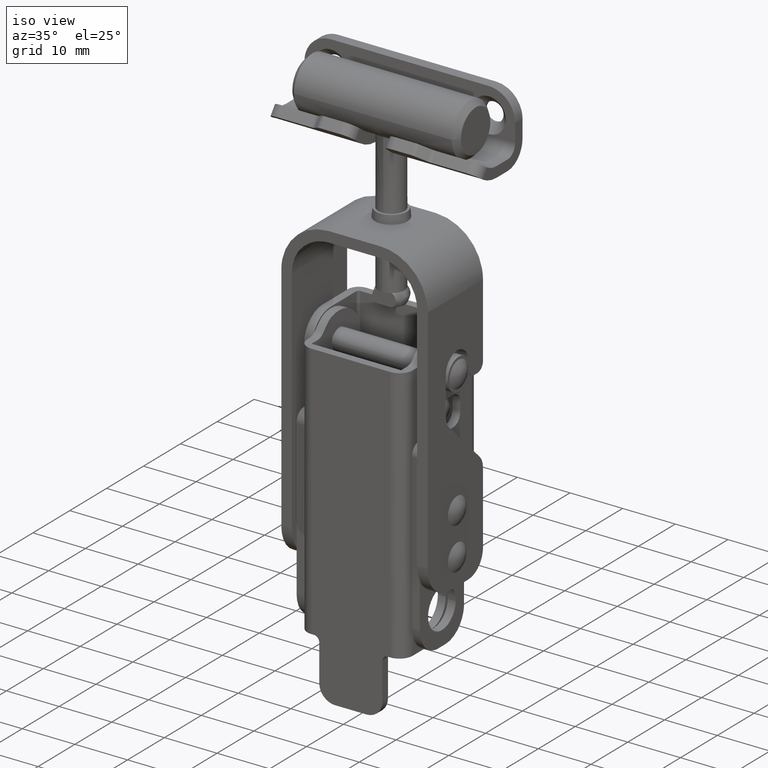
[diagram: clean part render]
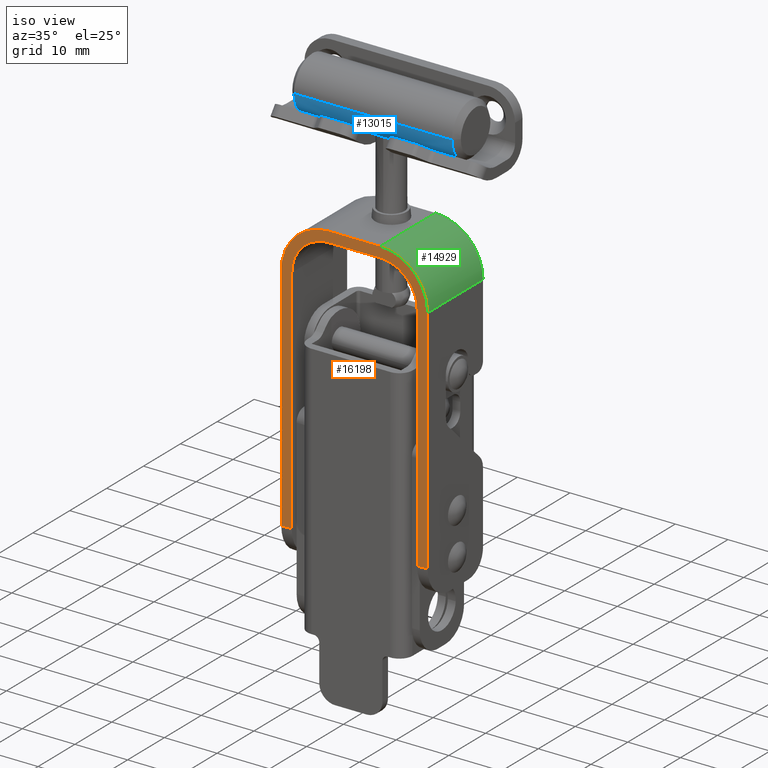
[diagram: same view with three faces highlighted in distinct colors, each labeled with its STEP entity id]
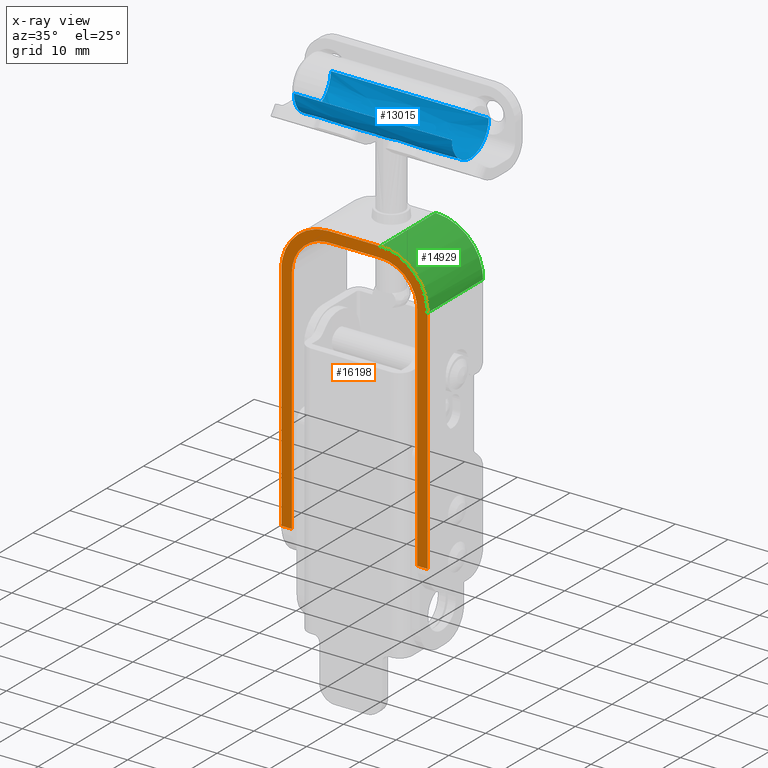
[diagram: x-ray of the same camera — body ghosted, the three highlighted faces saturated]
A machine part, iso view with three faces highlighted in distinct colors.
The next image is the same camera in x-ray (body ghosted, the three faces saturated) — at least one of them is partly hidden behind the body in this view.
Their STEP definitions:

[orange] entity #16198 — the highlighted face is a freeform B-spline surface patch.
#14499=CARTESIAN_POINT('',(13.899999999970520,-17.000000000073101,21.500000003629150));
#14500=VERTEX_POINT('',#14499);
#14506=CARTESIAN_POINT('',(13.899999999970500,-17.000000000073101,-22.499999996264648));
#14507=VERTEX_POINT('',#14506);
#14508=CARTESIAN_POINT('',(13.899999999970520,-17.000000000073101,21.500000003629150));
#14509=CARTESIAN_POINT('',(13.899999999970500,-17.000000000073101,-22.499999996264648));
#14510=QUASI_UNIFORM_CURVE('',1,(#14508,#14509),.UNSPECIFIED.,.F.,.U.);
#14511=EDGE_CURVE('',#14500,#14507,#14510,.T.);
#14845=CARTESIAN_POINT('',(-13.899999999970520,-17.000000000073101,21.500000003629150));
#14846=VERTEX_POINT('',#14845);
#14852=CARTESIAN_POINT('',(-4.899999999970480,-17.000000000073101,30.500000003629150));
#14853=VERTEX_POINT('',#14852);
#14854=CARTESIAN_POINT('',(-4.899999999970480,-17.000000000073101,30.500000003629140));
#14855=CARTESIAN_POINT('',(-13.899999999970481,-17.000000000073104,30.500000003629143));
#14856=CARTESIAN_POINT('',(-13.899999999970481,-17.000000000073101,21.500000003629150));
#14864=(BOUNDED_CURVE()B_SPLINE_CURVE(2,(#14854,#14855,#14856),.UNSPECIFIED.,.F.,.U.)CURVE()GEOMETRIC_REPRESENTATION_ITEM()QUASI_UNIFORM_CURVE()RATIONAL_B_SPLINE_CURVE((1.0,0.707106781186547,1.0))REPRESENTATION_ITEM(''));
#14865=EDGE_CURVE('',#14853,#14846,#14864,.T.);
#14904=CARTESIAN_POINT('',(4.899999999970480,-17.000000000073101,30.500000003629150));
#14905=VERTEX_POINT('',#14904);
#14911=CARTESIAN_POINT('',(13.899999999970520,-17.000000000073101,21.500000003629150));
#14912=CARTESIAN_POINT('',(13.900038232332751,-17.000000000073030,22.015412612368110));
#14913=CARTESIAN_POINT('',(13.811211625211000,-17.000000000073189,23.046232291412171));
#14914=CARTESIAN_POINT('',(13.378093858645270,-17.000000000073090,24.689913717342939));
#14915=CARTESIAN_POINT('',(12.647001604852500,-17.000000000073062,26.187862018049788));
#14916=CARTESIAN_POINT('',(11.781775484591609,-17.000000000073129,27.339422776038791));
#14917=CARTESIAN_POINT('',(10.932286727050380,-17.000000000073030,28.209995976485821));
#14918=CARTESIAN_POINT('',(9.779549192730297,-17.000000000073161,29.132861557127431));
#14919=CARTESIAN_POINT('',(8.330829296094505,-17.000000000073051,29.884462309425690));
#14920=CARTESIAN_POINT('',(6.593471048181974,-17.000000000073189,30.388154193837220));
#14921=CARTESIAN_POINT('',(5.525870303849191,-17.000000000072991,30.500087778918850));
#14922=CARTESIAN_POINT('',(4.899999999970480,-17.000000000073101,30.500000003629150));
#14923=B_SPLINE_CURVE_WITH_KNOTS('',3,(#14911,#14912,#14913,#14914,#14915,#14916,#14917,#14918,#14919,#14920,#14921,#14922),.UNSPECIFIED.,.F.,.U.,(4,1,1,1,1,1,1,1,1,4),(0.000000055512050,1.546243909095963,3.092519393494833,5.080581994167771,6.516427126079988,7.399936377352282,8.725319351749512,10.934287687331731,12.259652249708751,14.137255645877090),.UNSPECIFIED.);
#14924=EDGE_CURVE('',#14500,#14905,#14923,.T.);
#14961=CARTESIAN_POINT('',(-4.900000000000130,-17.000000000073101,28.500000003657949));
#14962=VERTEX_POINT('',#14961);
#14968=CARTESIAN_POINT('',(-11.899999999990200,-17.000000000073101,21.500000003663452));
#14969=VERTEX_POINT('',#14968);
#14970=CARTESIAN_POINT('',(-11.899999999990200,-17.000000000073051,21.500000003663452));
#14971=CARTESIAN_POINT('',(-11.899999999984697,-17.000000000073047,28.500000003648022));
#14972=CARTESIAN_POINT('',(-4.900000000000129,-17.000000000073051,28.500000003657949));
#14980=(BOUNDED_CURVE()B_SPLINE_CURVE(2,(#14970,#14971,#14972),.UNSPECIFIED.,.F.,.U.)CURVE()GEOMETRIC_REPRESENTATION_ITEM()QUASI_UNIFORM_CURVE()RATIONAL_B_SPLINE_CURVE((1.0,0.707106781187327,1.0))REPRESENTATION_ITEM(''));
#14981=EDGE_CURVE('',#14969,#14962,#14980,.T.);
#15022=CARTESIAN_POINT('',(11.900000000009760,-17.000000000073101,21.500000003666351));
#15023=VERTEX_POINT('',#15022);
#15029=CARTESIAN_POINT('',(4.899999999999830,-17.000000000073101,28.500000003671850));
#15030=VERTEX_POINT('',#15029);
#15031=CARTESIAN_POINT('',(4.899999999999830,-17.000000000073101,28.500000003671850));
#15032=CARTESIAN_POINT('',(5.587259016827311,-17.000000000073008,28.500288990388700));
#15033=CARTESIAN_POINT('',(6.675174023912357,-17.000000000073051,28.338434623315340));
#15034=CARTESIAN_POINT('',(8.062807656175355,-17.000000000073101,27.783386633340530));
#15035=CARTESIAN_POINT('',(9.114931272546013,-17.000000000072980,27.135114271064420));
#15036=CARTESIAN_POINT('',(10.121934898411290,-17.000000000073101,26.233683271196622));
#15037=CARTESIAN_POINT('',(10.842719321716631,-17.000000000072820,25.261832204765930));
#15038=CARTESIAN_POINT('',(11.364691111777550,-17.000000000073580,24.240314396285271));
#15039=CARTESIAN_POINT('',(11.773750757478251,-17.000000000072561,23.074807318404300));
#15040=CARTESIAN_POINT('',(11.900177481028820,-17.000000000073090,22.101335043621219));
#15041=CARTESIAN_POINT('',(11.900000000009760,-17.000000000073101,21.500000003666351));
#15042=B_SPLINE_CURVE_WITH_KNOTS('',3,(#15031,#15032,#15033,#15034,#15035,#15036,#15037,#15038,#15039,#15040,#15041),.UNSPECIFIED.,.F.,.U.,(4,1,1,1,1,1,1,1,4),(0.000000087222778,2.061673075693193,3.264340146206777,4.467005861127212,5.755496276178548,7.301779332796723,8.074922865340515,9.191685636750872,10.995643280144259),.UNSPECIFIED.);
#15043=EDGE_CURVE('',#15030,#15023,#15042,.T.);
#15058=CARTESIAN_POINT('',(11.899999999975240,-17.000000000073101,-22.499999996264648));
#15059=VERTEX_POINT('',#15058);
#15060=CARTESIAN_POINT('',(11.900000000009760,-17.000000000073101,21.500000003666351));
#15061=CARTESIAN_POINT('',(11.899999999975240,-17.000000000073101,-22.499999996264648));
#15062=QUASI_UNIFORM_CURVE('',1,(#15060,#15061),.UNSPECIFIED.,.F.,.U.);
#15063=EDGE_CURVE('',#15023,#15059,#15062,.T.);
#15248=CARTESIAN_POINT('',(-4.900000000000130,-17.000000000073101,28.500000003657949));
#15249=CARTESIAN_POINT('',(4.899999999999830,-17.000000000073101,28.500000003671850));
#15250=QUASI_UNIFORM_CURVE('',1,(#15248,#15249),.UNSPECIFIED.,.F.,.U.);
#15251=EDGE_CURVE('',#14962,#15030,#15250,.T.);
#15276=CARTESIAN_POINT('',(-11.900000000024701,-17.000000000073101,-22.499999996264648));
#15277=VERTEX_POINT('',#15276);
#15278=CARTESIAN_POINT('',(-11.900000000024701,-17.000000000073101,-22.499999996264648));
#15279=CARTESIAN_POINT('',(-11.899999999990200,-17.000000000073101,21.500000003663452));
#15280=QUASI_UNIFORM_CURVE('',1,(#15278,#15279),.UNSPECIFIED.,.F.,.U.);
#15281=EDGE_CURVE('',#15277,#14969,#15280,.T.);
#15455=CARTESIAN_POINT('',(-4.899999999970480,-17.000000000073101,30.500000003629150));
#15456=CARTESIAN_POINT('',(4.899999999970480,-17.000000000073101,30.500000003629150));
#15457=QUASI_UNIFORM_CURVE('',1,(#15455,#15456),.UNSPECIFIED.,.F.,.U.);
#15458=EDGE_CURVE('',#14853,#14905,#15457,.T.);
#16125=CARTESIAN_POINT('',(11.899999999975240,-17.000000000073101,-22.499999996264648));
#16126=CARTESIAN_POINT('',(13.899999999970500,-17.000000000073101,-22.499999996264648));
#16127=QUASI_UNIFORM_CURVE('',1,(#16125,#16126),.UNSPECIFIED.,.F.,.U.);
#16128=EDGE_CURVE('',#15059,#14507,#16127,.T.);
#16152=CARTESIAN_POINT('',(-13.899999999970500,-17.000000000073101,-22.499999996264648));
#16153=VERTEX_POINT('',#16152);
#16154=CARTESIAN_POINT('',(-13.899999999970500,-17.000000000073101,-22.499999996264648));
#16155=CARTESIAN_POINT('',(-11.900000000024701,-17.000000000073101,-22.499999996264648));
#16156=QUASI_UNIFORM_CURVE('',1,(#16154,#16155),.UNSPECIFIED.,.F.,.U.);
#16157=EDGE_CURVE('',#16153,#15277,#16156,.T.);
#16175=CARTESIAN_POINT('',(-15.288609946085780,-17.000000000073101,33.147349900899563));
#16176=CARTESIAN_POINT('',(-15.288609946085780,-17.000000000073101,-25.147351315105851));
#16177=CARTESIAN_POINT('',(15.288610691739891,-17.000000000073101,33.147349900899563));
#16178=CARTESIAN_POINT('',(15.288610691739891,-17.000000000073101,-25.147351315105851));
#16179=B_SPLINE_SURFACE_WITH_KNOTS('',1,1,((#16175,#16177),(#16176,#16178)),.UNSPECIFIED.,.F.,.F.,.U.,(2,2),(2,2),(0.0,58.294701216005407),(0.0,30.577220637825668),.UNSPECIFIED.);
#16180=ORIENTED_EDGE('',*,*,#14511,.F.);
#16181=ORIENTED_EDGE('',*,*,#14924,.T.);
#16182=ORIENTED_EDGE('',*,*,#15458,.F.);
#16183=ORIENTED_EDGE('',*,*,#14865,.T.);
#16184=CARTESIAN_POINT('',(-13.899999999970520,-17.000000000073101,21.500000003629150));
#16185=CARTESIAN_POINT('',(-13.899999999970500,-17.000000000073101,-22.499999996264648));
#16186=QUASI_UNIFORM_CURVE('',1,(#16184,#16185),.UNSPECIFIED.,.F.,.U.);
#16187=EDGE_CURVE('',#14846,#16153,#16186,.T.);
#16188=ORIENTED_EDGE('',*,*,#16187,.T.);
#16189=ORIENTED_EDGE('',*,*,#16157,.T.);
#16190=ORIENTED_EDGE('',*,*,#15281,.T.);
#16191=ORIENTED_EDGE('',*,*,#14981,.T.);
#16192=ORIENTED_EDGE('',*,*,#15251,.T.);
#16193=ORIENTED_EDGE('',*,*,#15043,.T.);
#16194=ORIENTED_EDGE('',*,*,#15063,.T.);
#16195=ORIENTED_EDGE('',*,*,#16128,.T.);
#16196=EDGE_LOOP('',(#16180,#16181,#16182,#16183,#16188,#16189,#16190,#16191,#16192,#16193,#16194,#16195));
#16197=FACE_OUTER_BOUND('',#16196,.T.);
#16198=ADVANCED_FACE('',(#16197),#16179,.T.);

[blue] entity #13015 — the highlighted face is a freeform B-spline surface patch.
#12554=CARTESIAN_POINT('',(15.000000000039250,-11.999809615010610,49.543632681334891));
#12555=VERTEX_POINT('',#12554);
#12563=CARTESIAN_POINT('',(15.000000000039250,-2.000190384989391,49.456367326030332));
#12564=VERTEX_POINT('',#12563);
#12622=CARTESIAN_POINT('',(15.000000000039099,-7.0,44.500000003991289));
#12623=VERTEX_POINT('',#12622);
#12624=CARTESIAN_POINT('',(15.000000000039099,-7.0,44.500000003991289));
#12625=CARTESIAN_POINT('',(15.000000000039170,-11.999999999691942,44.500000003910451));
#12626=CARTESIAN_POINT('',(15.000000000039250,-11.999999999692580,49.500000003520213));
#12627=CARTESIAN_POINT('',(15.000000000039241,-11.999999999692580,49.521816757785139));
#12628=CARTESIAN_POINT('',(15.000000000039243,-11.999809615010614,49.543632681334891));
#12636=(BOUNDED_CURVE()B_SPLINE_CURVE(2,(#12624,#12625,#12626,#12627,#12628),.UNSPECIFIED.,.F.,.U.)B_SPLINE_CURVE_WITH_KNOTS((3,2,3),(0.0,0.250000000000000,0.251539894346480),.UNSPECIFIED.)CURVE()GEOMETRIC_REPRESENTATION_ITEM()RATIONAL_B_SPLINE_CURVE((1.0,0.707106781186547,1.0,0.998195901552908,0.996414028073809))REPRESENTATION_ITEM(''));
#12637=EDGE_CURVE('',#12623,#12555,#12636,.T.);
#12639=CARTESIAN_POINT('',(15.000000000039247,-2.000190384989391,49.456367326030332));
#12640=CARTESIAN_POINT('',(15.000000000039167,-2.043443947653882,44.500000004072859));
#12641=CARTESIAN_POINT('',(15.000000000039099,-7.0,44.500000003991289));
#12649=(BOUNDED_CURVE()B_SPLINE_CURVE(2,(#12639,#12640,#12641),.UNSPECIFIED.,.F.,.U.)B_SPLINE_CURVE_WITH_KNOTS((3,3),(0.751539894346480,1.0),.UNSPECIFIED.)CURVE()GEOMETRIC_REPRESENTATION_ITEM()RATIONAL_B_SPLINE_CURVE((0.996414028073809,0.708910879633640,1.0))REPRESENTATION_ITEM(''));
#12650=EDGE_CURVE('',#12564,#12623,#12649,.T.);
#12682=CARTESIAN_POINT('',(-15.000220004284230,-11.999589619143480,49.478185584888713));
#12683=VERTEX_POINT('',#12682);
#12704=CARTESIAN_POINT('',(-14.999907684047960,-2.000098072512458,49.521817147950138));
#12705=VERTEX_POINT('',#12704);
#12751=CARTESIAN_POINT('',(-15.000000000039099,-7.0,44.500000003991289));
#12752=VERTEX_POINT('',#12751);
#12753=CARTESIAN_POINT('',(-15.000000000039099,-7.0,44.500000003991289));
#12754=CARTESIAN_POINT('',(-14.999953842043540,-2.043397791392812,44.532724915021305));
#12755=CARTESIAN_POINT('',(-14.999907684047965,-2.000098072512458,49.521817147950145));
#12763=(BOUNDED_CURVE()B_SPLINE_CURVE(2,(#12753,#12754,#12755),.UNSPECIFIED.,.F.,.U.)B_SPLINE_CURVE_WITH_KNOTS((3,3),(0.0,0.248460105654327),.UNSPECIFIED.)CURVE()GEOMETRIC_REPRESENTATION_ITEM()RATIONAL_B_SPLINE_CURVE((1.0,0.708910879632694,0.996414028075676))REPRESENTATION_ITEM(''));
#12764=EDGE_CURVE('',#12752,#12705,#12763,.T.);
#12766=CARTESIAN_POINT('',(-15.000220004284227,-11.999589619143473,49.478185584888706));
#12767=CARTESIAN_POINT('',(-15.000110002161660,-11.978049991516381,44.500000795453992));
#12768=CARTESIAN_POINT('',(-15.000000000039099,-7.0,44.500000003991289));
#12776=(BOUNDED_CURVE()B_SPLINE_CURVE(2,(#12766,#12767,#12768),.UNSPECIFIED.,.F.,.U.)B_SPLINE_CURVE_WITH_KNOTS((3,3),(0.750770619436434,1.0),.UNSPECIFIED.)CURVE()GEOMETRIC_REPRESENTATION_ITEM()RATIONAL_B_SPLINE_CURVE((0.998199892291126,0.708009618015417,1.0))REPRESENTATION_ITEM(''));
#12777=EDGE_CURVE('',#12683,#12752,#12776,.T.);
#12808=CARTESIAN_POINT('',(15.000000000039250,-2.000190384989391,49.456367326030332));
#12809=CARTESIAN_POINT('',(-14.999907684047960,-2.000098072512458,49.521817147950138));
#12810=QUASI_UNIFORM_CURVE('',1,(#12808,#12809),.UNSPECIFIED.,.F.,.U.);
#12811=EDGE_CURVE('',#12564,#12705,#12810,.T.);
#12815=CARTESIAN_POINT('',(15.000000000039250,-11.999809615010610,49.543632681334891));
#12816=CARTESIAN_POINT('',(-15.000220004284230,-11.999589619143480,49.478185584888713));
#12817=QUASI_UNIFORM_CURVE('',1,(#12815,#12816),.UNSPECIFIED.,.F.,.U.);
#12818=EDGE_CURVE('',#12555,#12683,#12817,.T.);
#12823=CARTESIAN_POINT('',(15.750000000041053,-1.999012651082635,49.591322264600450));
#12824=CARTESIAN_POINT('',(15.750000000041050,-1.999598207627918,49.524224130501999));
#12825=CARTESIAN_POINT('',(15.750000000041062,-2.043823062477002,44.456557711181254));
#12826=CARTESIAN_POINT('',(15.750000000041060,-7.043632677489178,44.500190388670433));
#12827=CARTESIAN_POINT('',(15.750000000041062,-12.043442292501354,44.543823066159604));
#12828=CARTESIAN_POINT('',(15.750000000041048,-11.999500566921403,49.579046084718023));
#12829=CARTESIAN_POINT('',(15.750000000041062,-11.999193326929966,49.614252300602878));
#12830=CARTESIAN_POINT('',(-15.768750000041104,-1.999012651082635,49.591322264600450));
#12831=CARTESIAN_POINT('',(-15.768750000041099,-1.999598207627918,49.524224130501999));
#12832=CARTESIAN_POINT('',(-15.768750000041109,-2.043823062477002,44.456557711181254));
#12833=CARTESIAN_POINT('',(-15.768750000041109,-7.043632677489178,44.500190388670433));
#12834=CARTESIAN_POINT('',(-15.768750000041109,-12.043442292501354,44.543823066159604));
#12835=CARTESIAN_POINT('',(-15.768750000041104,-11.999500566921403,49.579046084718023));
#12836=CARTESIAN_POINT('',(-15.768750000041109,-11.999193326929966,49.614252300602878));
#12844=(BOUNDED_SURFACE()B_SPLINE_SURFACE(2,1,((#12823,#12830),(#12824,#12831),(#12825,#12832),(#12826,#12833),(#12827,#12834),(#12828,#12835),(#12829,#12836)),.UNSPECIFIED.,.F.,.F.,.U.)B_SPLINE_SURFACE_WITH_KNOTS((3,1,2,1,3),(2,2),(0.0,0.159903358701858,8.444174605652291,16.728445852602722,16.811671951563941),(0.0,31.518750000082171),.UNSPECIFIED.)GEOMETRIC_REPRESENTATION_ITEM()RATIONAL_B_SPLINE_SURFACE(((1.011306874927957,1.011306874927957),(1.005653437463979,1.005653437463979),(0.707106781186548,0.707106781186548),(1.0,1.0),(0.707106781186548,0.707106781186548),(1.002942486947541,1.002942486947541),(1.005884973895081,1.005884973895081)))REPRESENTATION_ITEM('')SURFACE());
#12845=ORIENTED_EDGE('',*,*,#12637,.T.);
#12846=ORIENTED_EDGE('',*,*,#12818,.T.);
#12847=ORIENTED_EDGE('',*,*,#12777,.T.);
#12848=ORIENTED_EDGE('',*,*,#12764,.T.);
#12849=ORIENTED_EDGE('',*,*,#12811,.F.);
#12850=ORIENTED_EDGE('',*,*,#12650,.T.);
#12851=EDGE_LOOP('',(#12845,#12846,#12847,#12848,#12849,#12850));
#12852=FACE_OUTER_BOUND('',#12851,.T.);
#12853=CARTESIAN_POINT('',(2.499990375518832,-6.993062975189736,44.500004816224923));
#12854=VERTEX_POINT('',#12853);
#12855=CARTESIAN_POINT('',(0.196147777660406,-9.492293821021562,45.165432486337806));
#12856=VERTEX_POINT('',#12855);
#12857=CARTESIAN_POINT('',(2.499990375518832,-6.993062975189736,44.500004816224923));
#12858=CARTESIAN_POINT('',(2.500220426931955,-7.075969974346688,44.499889790520562));
#12859=CARTESIAN_POINT('',(2.496338316461227,-7.159202768838350,44.501834839337583));
#12860=CARTESIAN_POINT('',(2.480030278817978,-7.326343841323674,44.509959902546370));
#12861=CARTESIAN_POINT('',(2.467730386877147,-7.408843299892771,44.516076435962653));
#12862=CARTESIAN_POINT('',(2.419080334747574,-7.652253671207505,44.540045054358600));
#12863=CARTESIAN_POINT('',(2.371051698184568,-7.809580962374382,44.563529979864057));
#12864=CARTESIAN_POINT('',(2.275658847924671,-8.038365741069791,44.608391294628383));
#12865=CARTESIAN_POINT('',(2.240300913190030,-8.112506708979344,44.624780198959122));
#12866=CARTESIAN_POINT('',(2.163224551198901,-8.255817979179856,44.659714843937522));
#12867=CARTESIAN_POINT('',(2.121434890497598,-8.325157574929122,44.678294946767458));
#12868=CARTESIAN_POINT('',(2.031435237480172,-8.459383208637103,44.717209731233638));
#12869=CARTESIAN_POINT('',(1.983225432662487,-8.524269040998789,44.737545603405813));
#12870=CARTESIAN_POINT('',(1.905988581559565,-8.618286657265871,44.769012821063157));
#12871=CARTESIAN_POINT('',(1.879393060914150,-8.649095675237978,44.779672191958660));
#12872=CARTESIAN_POINT('',(1.825067642171812,-8.709023948207658,44.801037536009687));
#12873=CARTESIAN_POINT('',(1.797277716509767,-8.738219892241705,44.811768413337163));
#12874=CARTESIAN_POINT('',(1.655216187761474,-8.880458106389732,44.865491218261852));
#12875=CARTESIAN_POINT('',(1.531723301382664,-8.982402907060207,44.908711601846981));
#12876=CARTESIAN_POINT('',(1.364297259736134,-9.095309691381994,44.960144099139370));
#12877=CARTESIAN_POINT('',(1.330151749225304,-9.117156872568371,44.970299108477327));
#12878=CARTESIAN_POINT('',(1.260490002681940,-9.159356796877420,44.990263695486192));
#12879=CARTESIAN_POINT('',(1.225008566257006,-9.179680516053438,45.000060499899632));
#12880=CARTESIAN_POINT('',(1.117664211571954,-9.237731886257912,45.028488928866437));
#12881=CARTESIAN_POINT('',(1.044525721950001,-9.272782593690916,45.046269657888999));
#12882=CARTESIAN_POINT('',(0.820289079338997,-9.367156483511829,45.095275946258432));
#12883=CARTESIAN_POINT('',(0.664423595809122,-9.415833779421964,45.122191038151144));
#12884=CARTESIAN_POINT('',(0.460557640025802,-9.457563118810860,45.145637489345859));
#12885=CARTESIAN_POINT('',(0.419216280454711,-9.464953710454873,45.149821433595989));
#12886=CARTESIAN_POINT('',(0.336715560007494,-9.477571727412183,45.156995437179013));
#12887=CARTESIAN_POINT('',(0.295444842764022,-9.482827561106717,45.160001318013222));
#12888=CARTESIAN_POINT('',(0.234822984269858,-9.489022566159294,45.163553365644511));
#12889=CARTESIAN_POINT('',(0.215487584454562,-9.490771295826550,45.164557407079791));
#12890=CARTESIAN_POINT('',(0.196147777660406,-9.492293821021562,45.165432486337806));
#12891=B_SPLINE_CURVE_WITH_KNOTS('',3,(#12857,#12858,#12859,#12860,#12861,#12862,#12863,#12864,#12865,#12866,#12867,#12868,#12869,#12870,#12871,#12872,#12873,#12874,#12875,#12876,#12877,#12878,#12879,#12880,#12881,#12882,#12883,#12884,#12885,#12886,#12887,#12888,#12889,#12890),.UNSPECIFIED.,.F.,.U.,(4,2,2,2,2,2,2,2,2,2,2,2,2,2,2,2,4),(0.499999999999994,0.515624999999994,0.531249999999993,0.562499999999993,0.578124999999993,0.593749999999993,0.609374999999992,0.617187499999993,0.624999999999993,0.656249999999993,0.664062499999993,0.671874999999993,0.687499999999994,0.718749999999996,0.726562499999996,0.734374999999996,0.738032548070221),.UNSPECIFIED.);
#12892=EDGE_CURVE('',#12854,#12856,#12891,.T.);
#12893=ORIENTED_EDGE('',*,*,#12892,.F.);
#12894=CARTESIAN_POINT('',(-0.196150131568542,-4.507692971033983,45.165414999308382));
#12895=VERTEX_POINT('',#12894);
#12896=CARTESIAN_POINT('',(-0.196150131568542,-4.507692971033983,45.165414999308382));
#12897=CARTESIAN_POINT('',(-0.133060734105653,-4.502734466481314,45.168271015931538));
#12898=CARTESIAN_POINT('',(-0.069642297191362,-4.500170611988794,45.169768738591621));
#12899=CARTESIAN_POINT('',(0.035661067559599,-4.499922175878620,45.169912292594347));
#12900=CARTESIAN_POINT('',(0.077354755028920,-4.500858970068596,45.169370979793158));
#12901=CARTESIAN_POINT('',(0.161034471631735,-4.504852893880617,45.167068681738513));
#12902=CARTESIAN_POINT('',(0.203026253344885,-4.507920310855744,45.165301827081670));
#12903=CARTESIAN_POINT('',(0.327687799909515,-4.520174548964803,45.158272141443042));
#12904=CARTESIAN_POINT('',(0.491590573738381,-4.544670700742848,45.144267678562457));
#12905=CARTESIAN_POINT('',(0.651100798240729,-4.584884342979829,45.121871535829783));
#12906=CARTESIAN_POINT('',(0.769132010573609,-4.620908049518485,45.102255954340727));
#12907=CARTESIAN_POINT('',(0.808208420995174,-4.633895146845261,45.095247706832268));
#12908=CARTESIAN_POINT('',(0.885829122860822,-4.661846482474986,45.080346983510353));
#12909=CARTESIAN_POINT('',(0.924343724471671,-4.676807333609240,45.072457128105953));
#12910=CARTESIAN_POINT('',(1.113546550389595,-4.755703188509148,45.031416722901703));
#12911=CARTESIAN_POINT('',(1.255930320591685,-4.832350980575549,44.993216752476613));
#12912=CARTESIAN_POINT('',(1.423769150860361,-4.944645580588094,44.941911660897382));
#12913=CARTESIAN_POINT('',(1.456824075185476,-4.967938078129065,44.931470666012288));
#12914=CARTESIAN_POINT('',(1.521912674865001,-5.016216781526971,44.910300709131029));
#12915=CARTESIAN_POINT('',(1.553964661550986,-5.041225008225561,44.899563863981093));
#12916=CARTESIAN_POINT('',(1.647692548020415,-5.118082061318389,44.867342967211130));
#12917=CARTESIAN_POINT('',(1.707263757324431,-5.171981897769862,44.845749789666911));
#12918=CARTESIAN_POINT('',(1.877614744576893,-5.341617315633411,44.781480243631648));
#12919=CARTESIAN_POINT('',(1.980130724423676,-5.465194992290385,44.739307793327633));
#12920=CARTESIAN_POINT('',(2.094189008155781,-5.633975773098713,44.690088801757639));
#12921=CARTESIAN_POINT('',(2.116252864220006,-5.668414436307978,44.680434848254279));
#12922=CARTESIAN_POINT('',(2.158466757587041,-5.737990173318817,44.661750501677673));
#12923=CARTESIAN_POINT('',(2.178679244317702,-5.773217649617997,44.652693263955769));
#12924=CARTESIAN_POINT('',(2.236664687298372,-5.880219586650673,44.626447574557069));
#12925=CARTESIAN_POINT('',(2.271792738500474,-5.953310410982525,44.610184651275198));
#12926=CARTESIAN_POINT('',(2.334982703623446,-6.103083719918771,44.580509062453402));
#12927=CARTESIAN_POINT('',(2.363045145992086,-6.179765777541590,44.567095384853417));
#12928=CARTESIAN_POINT('',(2.399657191635764,-6.297621180802133,44.549418297183841));
#12929=CARTESIAN_POINT('',(2.410945731563907,-6.337379231012505,44.543933480595243));
#12930=CARTESIAN_POINT('',(2.431636819456419,-6.417875923588178,44.533835359472327));
#12931=CARTESIAN_POINT('',(2.441052857959963,-6.458710114330790,44.529215318847648));
#12932=CARTESIAN_POINT('',(2.482740759676657,-6.662731003108084,44.508690837970057));
#12933=CARTESIAN_POINT('',(2.499530322163313,-6.827249369433809,44.500234456276623));
#12934=CARTESIAN_POINT('',(2.499990375518832,-6.993062975189736,44.500004816224923));
#12935=B_SPLINE_CURVE_WITH_KNOTS('',3,(#12896,#12897,#12898,#12899,#12900,#12901,#12902,#12903,#12904,#12905,#12906,#12907,#12908,#12909,#12910,#12911,#12912,#12913,#12914,#12915,#12916,#12917,#12918,#12919,#12920,#12921,#12922,#12923,#12924,#12925,#12926,#12927,#12928,#12929,#12930,#12931,#12932,#12933,#12934),.UNSPECIFIED.,.F.,.U.,(4,2,2,2,1,2,2,2,2,2,2,2,2,2,2,2,2,2,2,4),(0.238013086035305,0.250000000000004,0.257812500000004,0.265625000000004,0.281250000000003,0.296875000000003,0.304687500000003,0.312500000000003,0.343750000000001,0.351562500000001,0.359375000000001,0.375000000000000,0.406249999999998,0.414062499999998,0.421874999999997,0.437499999999996,0.453124999999995,0.460937499999995,0.468749999999995,0.499999999999994),.UNSPECIFIED.);
#12936=EDGE_CURVE('',#12895,#12854,#12935,.T.);
#12937=ORIENTED_EDGE('',*,*,#12936,.F.);
#12938=CARTESIAN_POINT('',(-2.500000000000000,-7.000000000000003,44.500000003991282));
#12939=VERTEX_POINT('',#12938);
#12940=CARTESIAN_POINT('',(-2.500000000000000,-7.000000000000003,44.500000003991282));
#12941=CARTESIAN_POINT('',(-2.499999940251018,-6.831902778550128,44.499999520077559));
#12942=CARTESIAN_POINT('',(-2.483222663918583,-6.667125534854680,44.508447212392753));
#12943=CARTESIAN_POINT('',(-2.434283739964797,-6.424622032147680,44.532550424116721));
#12944=CARTESIAN_POINT('',(-2.413976873615155,-6.344570039583012,44.542495424093261));
#12945=CARTESIAN_POINT('',(-2.377421147132223,-6.225672957665236,44.560157423167666));
#12946=CARTESIAN_POINT('',(-2.364211351927424,-6.186243463614679,44.566505167373720));
#12947=CARTESIAN_POINT('',(-2.336081710054263,-6.108699753127018,44.579923087730819));
#12948=CARTESIAN_POINT('',(-2.321127038045960,-6.070465602447622,44.587010170557193));
#12949=CARTESIAN_POINT('',(-2.242007853330471,-5.881897489137415,44.624190439680667));
#12950=CARTESIAN_POINT('',(-2.164950137481455,-5.739295927181289,44.659507643648489));
#12951=CARTESIAN_POINT('',(-2.051582236843677,-5.570789771418697,44.708483886592418));
#12952=CARTESIAN_POINT('',(-2.027984782846739,-5.537499951247802,44.718546920479781));
#12953=CARTESIAN_POINT('',(-1.979432690507601,-5.472429032264137,44.738936245240822));
#12954=CARTESIAN_POINT('',(-1.954471874941653,-5.440627867323765,44.749266043905891));
#12955=CARTESIAN_POINT('',(-1.877564877772320,-5.347359613934748,44.780559145798570));
#12956=CARTESIAN_POINT('',(-1.823600142692635,-5.288021896292255,44.801826473559899));
#12957=CARTESIAN_POINT('',(-1.710292489418568,-5.174819992976675,44.844635026132522));
#12958=CARTESIAN_POINT('',(-1.650949846256747,-5.120956009769271,44.866177530615438));
#12959=CARTESIAN_POINT('',(-1.557761657613135,-5.044249203816256,44.898277289586311));
#12960=CARTESIAN_POINT('',(-1.526001674868028,-5.019363227408974,44.908941230527113));
#12961=CARTESIAN_POINT('',(-1.461043594588640,-4.970972495083580,44.930121389339646));
#12962=CARTESIAN_POINT('',(-1.427845318117492,-4.947476226142730,44.940635257749818));
#12963=CARTESIAN_POINT('',(-1.259956047365918,-4.834671251012776,44.992091755426280));
#12964=CARTESIAN_POINT('',(-1.118285302501987,-4.758193705086188,45.030171397812452));
#12965=CARTESIAN_POINT('',(-0.894000967151697,-4.663917083505299,45.079138255697188));
#12966=CARTESIAN_POINT('',(-0.817261716949444,-4.635926763254027,45.094097554613491));
#12967=CARTESIAN_POINT('',(-0.698942651174048,-4.599349453580453,45.113986073333187));
#12968=CARTESIAN_POINT('',(-0.658842267003587,-4.588033163588209,45.120205229960007));
#12969=CARTESIAN_POINT('',(-0.578516402797800,-4.567516852549687,45.131566379235487));
#12970=CARTESIAN_POINT('',(-0.538215738316894,-4.558286881524253,45.136724268349823));
#12971=CARTESIAN_POINT('',(-0.398071065358350,-4.529812751877601,45.152729029310109));
#12972=CARTESIAN_POINT('',(-0.297535467452515,-4.515660792793072,45.160825898574139));
#12973=CARTESIAN_POINT('',(-0.196150131568542,-4.507692971033983,45.165414999308382));
#12974=B_SPLINE_CURVE_WITH_KNOTS('',3,(#12940,#12941,#12942,#12943,#12944,#12945,#12946,#12947,#12948,#12949,#12950,#12951,#12952,#12953,#12954,#12955,#12956,#12957,#12958,#12959,#12960,#12961,#12962,#12963,#12964,#12965,#12966,#12967,#12968,#12969,#12970,#12971,#12972,#12973),.UNSPECIFIED.,.F.,.U.,(4,2,2,2,2,2,2,2,2,2,2,2,2,2,2,2,4),(0.0,0.031250000000001,0.046875000000001,0.054687500000002,0.062500000000002,0.093750000000003,0.101562500000003,0.109375000000003,0.125000000000003,0.140625000000003,0.148437500000003,0.156250000000004,0.187500000000004,0.203125000000004,0.210937500000004,0.218750000000004,0.238013086035305),.UNSPECIFIED.);
#12975=EDGE_CURVE('',#12939,#12895,#12974,.T.);
#12976=ORIENTED_EDGE('',*,*,#12975,.F.);
#12977=CARTESIAN_POINT('',(0.196147777660406,-9.492293821021562,45.165432486337806));
#12978=CARTESIAN_POINT('',(0.132868170597788,-9.497275516539157,45.168295734818507));
#12979=CARTESIAN_POINT('',(-0.013139630994739,-9.503177851917080,45.171714035311069));
#12980=CARTESIAN_POINT('',(-0.159397339126878,-9.496302960015001,45.167730864685552));
#12981=CARTESIAN_POINT('',(-0.325205157155167,-9.480156788758002,45.158467236989758));
#12982=CARTESIAN_POINT('',(-0.408598945260524,-9.467781303190948,45.151390760871628));
#12983=CARTESIAN_POINT('',(-0.652958525535467,-9.418934110637453,45.123911349576623));
#12984=CARTESIAN_POINT('',(-0.809841106735585,-9.370873460107973,45.097272721117683));
#12985=CARTESIAN_POINT('',(-1.036886673180804,-9.276309695292769,45.048070629527842));
#12986=CARTESIAN_POINT('',(-1.111360687465449,-9.240869410694881,45.030062422859316));
#12987=CARTESIAN_POINT('',(-1.254711685998385,-9.163866221683042,44.992282087671967));
#12988=CARTESIAN_POINT('',(-1.323960333266239,-9.122173511340279,44.972439147046167));
#12989=CARTESIAN_POINT('',(-1.457868827450891,-9.032513223013133,44.931486255976552));
#12990=CARTESIAN_POINT('',(-1.522528127573786,-8.984545367970673,44.910375110511353));
#12991=CARTESIAN_POINT('',(-1.647354383455448,-8.882215686275266,44.867469245481402));
#12992=CARTESIAN_POINT('',(-1.707772815928715,-8.827574769818256,44.845573703626933));
#12993=CARTESIAN_POINT('',(-1.879312577436932,-8.656579911070130,44.780826268957398));
#12994=CARTESIAN_POINT('',(-1.981512143835648,-8.532867598370192,44.738724349191543));
#12995=CARTESIAN_POINT('',(-2.117058157535099,-8.332134709848180,44.680220540565003));
#12996=CARTESIAN_POINT('',(-2.159255379303714,-8.262677341545158,44.661491051355320));
#12997=CARTESIAN_POINT('',(-2.217889501713596,-8.154404802500087,44.634948094548513));
#12998=CARTESIAN_POINT('',(-2.236598298831264,-8.117723838111111,44.626384809814802));
#12999=CARTESIAN_POINT('',(-2.272024229970130,-8.043831626176564,44.610025851187423));
#13000=CARTESIAN_POINT('',(-2.288792708200676,-8.006527166095340,44.602206963912877));
#13001=CARTESIAN_POINT('',(-2.367959763788918,-7.818213488307485,44.565011890182817));
#13002=CARTESIAN_POINT('',(-2.416482263733015,-7.661881130484134,44.541315122155908));
#13003=CARTESIAN_POINT('',(-2.457876160212153,-7.458870171195327,44.520933497108260));
#13004=CARTESIAN_POINT('',(-2.465182418846874,-7.417884916160846,44.517320567474961));
#13005=CARTESIAN_POINT('',(-2.477790472943122,-7.335121683344082,44.511070696017882));
#13006=CARTESIAN_POINT('',(-2.483083820414477,-7.293353091652767,44.508437940334410));
#13007=CARTESIAN_POINT('',(-2.495754670682275,-7.168088751503131,44.502126684505861));
#13008=CARTESIAN_POINT('',(-2.500000000576431,-7.084048844162148,44.500000003991282));
#13009=CARTESIAN_POINT('',(-2.500000000000000,-7.000000000000003,44.500000003991282));
#13010=B_SPLINE_CURVE_WITH_KNOTS('',3,(#12977,#12978,#12979,#12980,#12981,#12982,#12983,#12984,#12985,#12986,#12987,#12988,#12989,#12990,#12991,#12992,#12993,#12994,#12995,#12996,#12997,#12998,#12999,#13000,#13001,#13002,#13003,#13004,#13005,#13006,#13007,#13008,#13009),.UNSPECIFIED.,.F.,.U.,(4,1,2,2,2,2,2,2,2,2,2,2,2,2,2,2,4),(0.738032548070221,0.749999999999997,0.765624999999997,0.781249999999998,0.812499999999999,0.828125000000000,0.843750000000000,0.859375000000001,0.875000000000001,0.906250000000002,0.921875000000002,0.929687500000002,0.937500000000002,0.968750000000001,0.976562500000001,0.984375000000001,1.0),.UNSPECIFIED.);
#13011=EDGE_CURVE('',#12856,#12939,#13010,.T.);
#13012=ORIENTED_EDGE('',*,*,#13011,.F.);
#13013=EDGE_LOOP('',(#12893,#12937,#12976,#13012));
#13014=FACE_BOUND('',#13013,.T.);
#13015=ADVANCED_FACE('',(#12852,#13014),#12844,.T.);

[green] entity #14929 — the highlighted face is a freeform B-spline surface patch.
#14492=CARTESIAN_POINT('',(13.899999999970520,-2.000000000073785,21.500000003629150));
#14493=VERTEX_POINT('',#14492);
#14499=CARTESIAN_POINT('',(13.899999999970520,-17.000000000073101,21.500000003629150));
#14500=VERTEX_POINT('',#14499);
#14501=CARTESIAN_POINT('',(13.899999999970520,-2.000000000073785,21.500000003629150));
#14502=CARTESIAN_POINT('',(13.899999999970520,-17.000000000073101,21.500000003629150));
#14503=QUASI_UNIFORM_CURVE('',1,(#14501,#14502),.UNSPECIFIED.,.F.,.U.);
#14504=EDGE_CURVE('',#14493,#14500,#14503,.T.);
#14875=CARTESIAN_POINT('',(13.899657307548070,-17.375000000073090,21.421461184143791));
#14876=CARTESIAN_POINT('',(13.899657307548070,-1.615625000073803,21.421461184143791));
#14877=CARTESIAN_POINT('',(13.983879880086441,-17.375000000073083,31.072412081734921));
#14878=CARTESIAN_POINT('',(13.983879880086441,-1.615625000073803,31.072412081734921));
#14879=CARTESIAN_POINT('',(4.350563144156816,-17.375000000073090,30.483213189425950));
#14880=CARTESIAN_POINT('',(4.350563144156816,-1.615625000073803,30.483213189425950));
#14888=(BOUNDED_SURFACE()B_SPLINE_SURFACE(1,2,((#14875,#14877,#14879),(#14876,#14878,#14880)),.UNSPECIFIED.,.F.,.F.,.U.)B_SPLINE_SURFACE_WITH_KNOTS((2,2),(3,3),(0.0,15.759374999999290),(0.0,15.653245498593590),.UNSPECIFIED.)GEOMETRIC_REPRESENTATION_ITEM()RATIONAL_B_SPLINE_SURFACE(((1.0,0.681998360062499,1.0),(1.0,0.681998360062499,1.0)))REPRESENTATION_ITEM('')SURFACE());
#14889=CARTESIAN_POINT('',(4.899999999970480,-2.000000000073785,30.500000003629150));
#14890=VERTEX_POINT('',#14889);
#14891=CARTESIAN_POINT('',(4.899999999970530,-2.000000000073785,30.500000003629140));
#14892=CARTESIAN_POINT('',(13.899999999970529,-2.000000000073785,30.500000003629143));
#14893=CARTESIAN_POINT('',(13.899999999970531,-2.000000000073785,21.500000003629150));
#14901=(BOUNDED_CURVE()B_SPLINE_CURVE(2,(#14891,#14892,#14893),.UNSPECIFIED.,.F.,.U.)CURVE()GEOMETRIC_REPRESENTATION_ITEM()QUASI_UNIFORM_CURVE()RATIONAL_B_SPLINE_CURVE((1.0,0.707106781186547,1.0))REPRESENTATION_ITEM(''));
#14902=EDGE_CURVE('',#14890,#14493,#14901,.T.);
#14903=ORIENTED_EDGE('',*,*,#14902,.F.);
#14904=CARTESIAN_POINT('',(4.899999999970480,-17.000000000073101,30.500000003629150));
#14905=VERTEX_POINT('',#14904);
#14906=CARTESIAN_POINT('',(4.899999999970480,-17.000000000073101,30.500000003629150));
#14907=CARTESIAN_POINT('',(4.899999999970480,-2.000000000073785,30.500000003629150));
#14908=QUASI_UNIFORM_CURVE('',1,(#14906,#14907),.UNSPECIFIED.,.F.,.U.);
#14909=EDGE_CURVE('',#14905,#14890,#14908,.T.);
#14910=ORIENTED_EDGE('',*,*,#14909,.F.);
#14911=CARTESIAN_POINT('',(13.899999999970520,-17.000000000073101,21.500000003629150));
#14912=CARTESIAN_POINT('',(13.900038232332751,-17.000000000073030,22.015412612368110));
#14913=CARTESIAN_POINT('',(13.811211625211000,-17.000000000073189,23.046232291412171));
#14914=CARTESIAN_POINT('',(13.378093858645270,-17.000000000073090,24.689913717342939));
#14915=CARTESIAN_POINT('',(12.647001604852500,-17.000000000073062,26.187862018049788));
#14916=CARTESIAN_POINT('',(11.781775484591609,-17.000000000073129,27.339422776038791));
#14917=CARTESIAN_POINT('',(10.932286727050380,-17.000000000073030,28.209995976485821));
#14918=CARTESIAN_POINT('',(9.779549192730297,-17.000000000073161,29.132861557127431));
#14919=CARTESIAN_POINT('',(8.330829296094505,-17.000000000073051,29.884462309425690));
#14920=CARTESIAN_POINT('',(6.593471048181974,-17.000000000073189,30.388154193837220));
#14921=CARTESIAN_POINT('',(5.525870303849191,-17.000000000072991,30.500087778918850));
#14922=CARTESIAN_POINT('',(4.899999999970480,-17.000000000073101,30.500000003629150));
#14923=B_SPLINE_CURVE_WITH_KNOTS('',3,(#14911,#14912,#14913,#14914,#14915,#14916,#14917,#14918,#14919,#14920,#14921,#14922),.UNSPECIFIED.,.F.,.U.,(4,1,1,1,1,1,1,1,1,4),(0.000000055512050,1.546243909095963,3.092519393494833,5.080581994167771,6.516427126079988,7.399936377352282,8.725319351749512,10.934287687331731,12.259652249708751,14.137255645877090),.UNSPECIFIED.);
#14924=EDGE_CURVE('',#14500,#14905,#14923,.T.);
#14925=ORIENTED_EDGE('',*,*,#14924,.F.);
#14926=ORIENTED_EDGE('',*,*,#14504,.F.);
#14927=EDGE_LOOP('',(#14903,#14910,#14925,#14926));
#14928=FACE_OUTER_BOUND('',#14927,.T.);
#14929=ADVANCED_FACE('',(#14928),#14888,.T.);